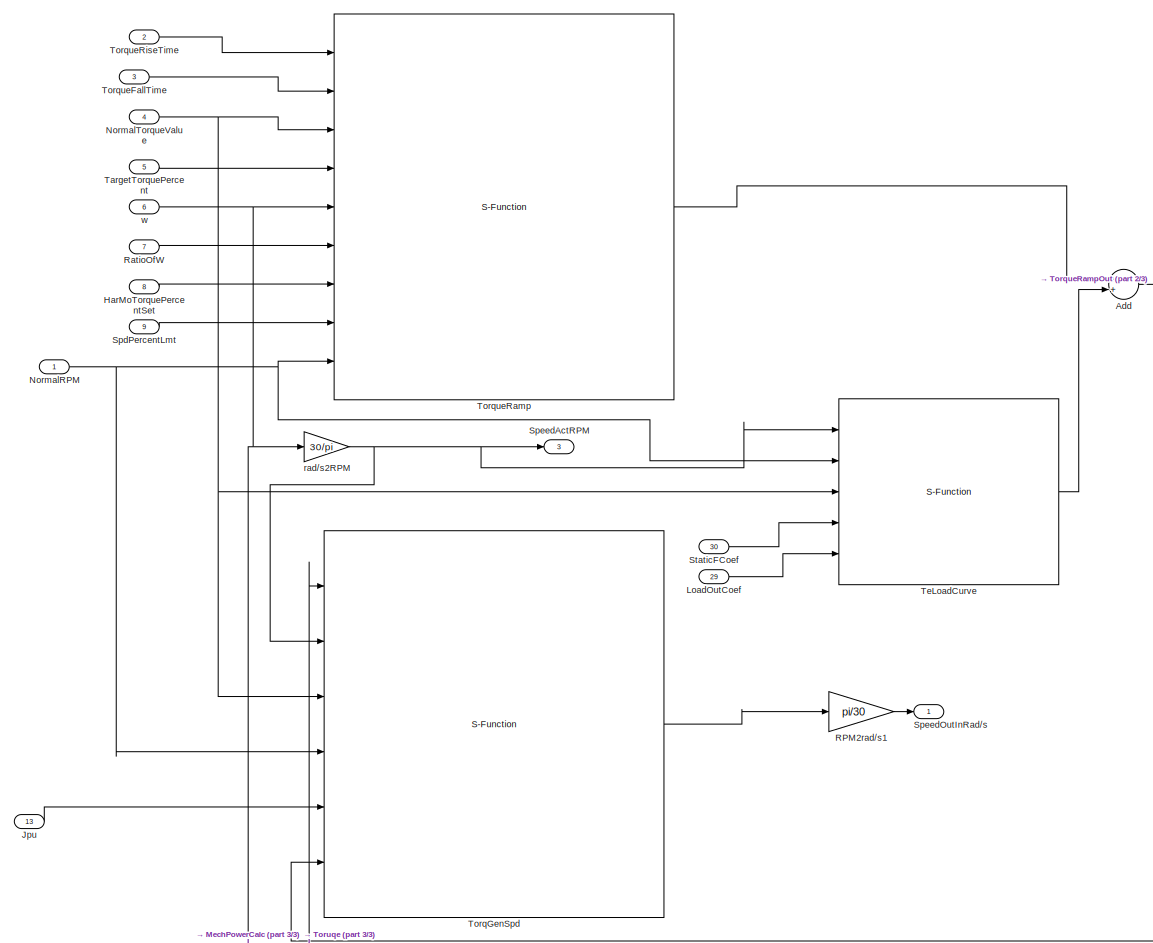
[diagram: root canvas - part 1/3, middle left region]
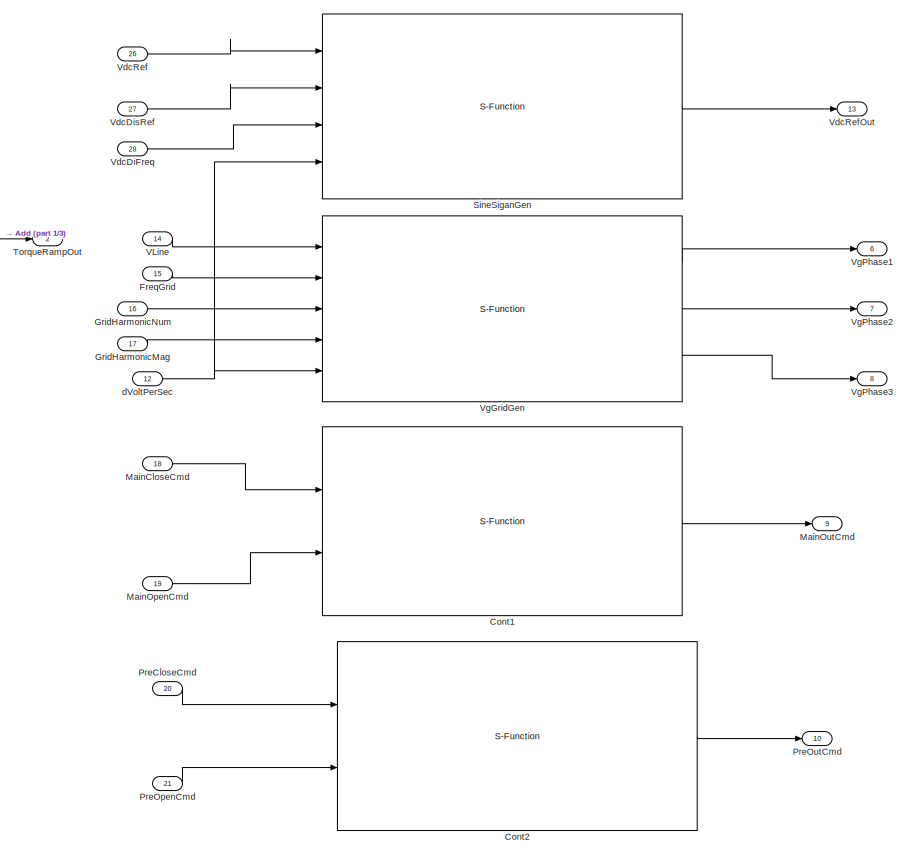
[diagram: root canvas - part 2/3, top right region]
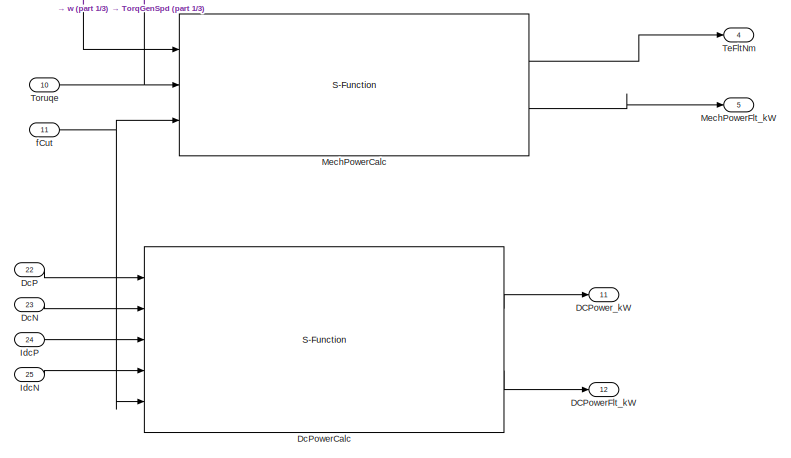
[diagram: root canvas - part 3/3, bottom left region]
MODEL slx_8d3f5c00875e
KIND model
BLOCK [Sum] Add
  InputSameDT = off
  OutDataTypeStr = Inherit: Inherit via internal rule
  Ports = [2, 1]
  SaturateOnIntegerOverflow = off
BLOCK [S-Function] Cont1
  CopyFcn = set_param(gcbh,'LinkStatus','none')
  EnableBusSupport = off
  FunctionName = Contator
  InitFcn = try, set_param(gcb,'FunctionName','Contator'), end
  MaskCapabilities = slmaskedcaps(gcbh)
  MaskDescription = Simulink:masks:SFunctionBuilder_MD
  MaskDisplay = plot(val(:,1),val(:,2)),disp(sys), port_label('input',1,'CloseCmd'), port_label('input',2,'OpenCmd'), port_label('output',1,'ConCmd')
  MaskIconFrame = on
  MaskIconOpaque = on
  MaskIconRotate = none
  MaskIconUnits = normalized
  MaskInitialization = val = [[.9  0.75 0.75 1 1 .9 .9 1]',[1 1 0.75 0.75 .9 .9 1 .9]'];try , sys = get_param(gcb,'SfunBuilderFcnName');if isempty(sys), sys = get_param(gcb,'FunctionName'); end,catch, sys = get_param(gcb,'FunctionName'); end  <repeated x9 — deduplicated; at blocks: Cont1, Cont2, DcPowerCalc, MechPowerCalc, SineSiganGen, TeLoadCurve, TorqGenSpd, TorqueRamp, VgGridGen>
  MaskPortRotate = default
  MaskType = S-Function Builder
  OpenFcn = sfunctionwizard(gcbh)
  Ports = [2, 1]
  PreSaveFcn = try, set_param(gcb,'FunctionName','Contator'), end
  SFunctionDeploymentMode = off
  SFunctionModules = Contator_wrapper
BLOCK [S-Function] Cont2
  CopyFcn = set_param(gcbh,'LinkStatus','none')
  EnableBusSupport = off
  FunctionName = Contator
  InitFcn = try, set_param(gcb,'FunctionName','Contator'), end
  MaskCapabilities = slmaskedcaps(gcbh)
  MaskDescription = Simulink:masks:SFunctionBuilder_MD
  MaskDisplay = plot(val(:,1),val(:,2)),disp(sys), port_label('input',1,'CloseCmd'), port_label('input',2,'OpenCmd'), port_label('output',1,'ConCmd')
  MaskIconFrame = on
  MaskIconOpaque = on
  MaskIconRotate = none
  MaskIconUnits = normalized
  MaskPortRotate = default
  MaskType = S-Function Builder
  OpenFcn = sfunctionwizard(gcbh)
  Ports = [2, 1]
  PreSaveFcn = try, set_param(gcb,'FunctionName','Contator'), end
  SFunctionDeploymentMode = off
  SFunctionModules = Contator_wrapper
BLOCK [Outport] DCPowerFlt_kW
  IconDisplay = Port number
  Port = 12
BLOCK [Outport] DCPower_kW
  IconDisplay = Port number
  Port = 11
BLOCK [Inport] DcN
  IconDisplay = Port number
  Port = 23
BLOCK [Inport] DcP
  IconDisplay = Port number
  Port = 22
BLOCK [S-Function] DcPowerCalc
  CopyFcn = set_param(gcbh,'LinkStatus','none')
  EnableBusSupport = off
  FunctionName = DCPowerCalc
  InitFcn = try, set_param(gcb,'FunctionName','DCPowerCalc'), end
  MaskCapabilities = slmaskedcaps(gcbh)
  MaskDescription = Simulink:masks:SFunctionBuilder_MD
  MaskDisplay = plot(val(:,1),val(:,2)),disp(sys), port_label('input',1,'VdcP'), port_label('input',2,'VdcN'), port_label('input',3,'IdcP'), port_label('input',4,'IdcN'), port_label('input',5,'fCut'), port_label('output',1,'DCPower_kW'), port_label('output',2,'DCPowerFlt_kW')
  MaskIconFrame = on
  MaskIconOpaque = on
  MaskIconRotate = none
  MaskIconUnits = normalized
  MaskPortRotate = default
  MaskType = S-Function Builder
  OpenFcn = sfunctionwizard(gcbh)
  Ports = [5, 2]
  PreSaveFcn = try, set_param(gcb,'FunctionName','DCPowerCalc'), end
  SFunctionDeploymentMode = off
  SFunctionModules = DCPowerCalc_wrapper
BLOCK [Inport] FreqGrid
  IconDisplay = Port number
  Port = 15
BLOCK [Inport] GridHarmonicMag
  IconDisplay = Port number
  Port = 17
BLOCK [Inport] GridHarmonicNum
  IconDisplay = Port number
  Port = 16
BLOCK [Inport] HarMoTorquePercentSet
  IconDisplay = Port number
  Port = 8
BLOCK [Inport] IdcN
  IconDisplay = Port number
  Port = 25
BLOCK [Inport] IdcP
  IconDisplay = Port number
  Port = 24
BLOCK [Inport] Jpu
  IconDisplay = Port number
  Port = 13
BLOCK [Inport] LoadOutCoef
  IconDisplay = Port number
  Port = 29
BLOCK [Inport] MainCloseCmd
  IconDisplay = Port number
  Port = 18
BLOCK [Inport] MainOpenCmd
  IconDisplay = Port number
  Port = 19
BLOCK [Outport] MainOutCmd
  IconDisplay = Port number
  Port = 9
BLOCK [S-Function] MechPowerCalc
  CopyFcn = set_param(gcbh,'LinkStatus','none')
  EnableBusSupport = off
  FunctionName = MechPowerCalc
  InitFcn = try, set_param(gcb,'FunctionName','MechPowerCalc'), end
  MaskCapabilities = slmaskedcaps(gcbh)
  MaskDescription = Simulink:masks:SFunctionBuilder_MD
  MaskDisplay = plot(val(:,1),val(:,2)),disp(sys), port_label('input',1,'Wm'), port_label('input',2,'Torque'), port_label('input',3,'fCut'), port_label('output',1,'MechPower_kW'), port_label('output',2,'MechPowerFlt_kW')
  MaskIconFrame = on
  MaskIconOpaque = on
  MaskIconRotate = none
  MaskIconUnits = normalized
  MaskPortRotate = default
  MaskType = S-Function Builder
  OpenFcn = sfunctionwizard(gcbh)
  Ports = [3, 2]
  PreSaveFcn = try, set_param(gcb,'FunctionName','MechPowerCalc'), end
  SFunctionDeploymentMode = off
  SFunctionModules = MechPowerCalc_wrapper
BLOCK [Outport] MechPowerFlt_kW
  IconDisplay = Port number
  Port = 5
BLOCK [Inport] NormalRPM
  IconDisplay = Port number
BLOCK [Inport] NormalTorqueValue
  IconDisplay = Port number
  Port = 4
BLOCK [Inport] PreCloseCmd
  IconDisplay = Port number
  Port = 20
BLOCK [Inport] PreOpenCmd
  IconDisplay = Port number
  Port = 21
BLOCK [Outport] PreOutCmd
  IconDisplay = Port number
  Port = 10
BLOCK [Gain] RPM2rad//s1
  Gain = pi/30
  OutDataTypeStr = Inherit: Inherit via internal rule
  ParamDataTypeStr = Inherit: Inherit via internal rule
  SaturateOnIntegerOverflow = off
BLOCK [Inport] RatioOfW
  IconDisplay = Port number
  Port = 7
BLOCK [S-Function] SineSiganGen
  CopyFcn = set_param(gcbh,'LinkStatus','none')
  EnableBusSupport = off
  FunctionName = SineSignalGen
  InitFcn = try, set_param(gcb,'FunctionName','SineSignalGen'), end
  MaskCapabilities = slmaskedcaps(gcbh)
  MaskDescription = Simulink:masks:SFunctionBuilder_MD
  MaskDisplay = plot(val(:,1),val(:,2)),disp(sys), port_label('input',1,'DCMag'), port_label('input',2,'ACMag'), port_label('input',3,'Freq'), port_label('input',4,'dVoltPerSec'), port_label('output',1,'SineOut')
  MaskIconFrame = on
  MaskIconOpaque = on
  MaskIconRotate = none
  MaskIconUnits = normalized
  MaskPortRotate = default
  MaskType = S-Function Builder
  OpenFcn = sfunctionwizard(gcbh)
  Ports = [4, 1]
  PreSaveFcn = try, set_param(gcb,'FunctionName','SineSignalGen'), end
  SFunctionDeploymentMode = off
  SFunctionModules = SineSignalGen_wrapper
BLOCK [Inport] SpdPercentLmt
  IconDisplay = Port number
  Port = 9
BLOCK [Outport] SpeedActRPM
  IconDisplay = Port number
  Port = 3
BLOCK [Outport] SpeedOutInRad//s
  IconDisplay = Port number
BLOCK [Inport] StaticFCoef
  IconDisplay = Port number
  Port = 30
BLOCK [Inport] TargetTorquePercent
  IconDisplay = Port number
  Port = 5
BLOCK [Outport] TeFltNm
  IconDisplay = Port number
  Port = 4
BLOCK [S-Function] TeLoadCurve
  CopyFcn = set_param(gcbh,'LinkStatus','none')
  EnableBusSupport = off
  FunctionName = TeCurveSignalGen
  InitFcn = try, set_param(gcb,'FunctionName','TeCurveSignalGen'), end
  MaskCapabilities = slmaskedcaps(gcbh)
  MaskDescription = Simulink:masks:SFunctionBuilder_MD
  MaskDisplay = plot(val(:,1),val(:,2)),disp(sys), port_label('input',1,'nrpm'), port_label('input',2,'NormRpm'), port_label('input',3,'TeNorm'), port_label('input',4,'StaticFCoef'), port_label('input',5,'KpLoadCurve'), port_label('output',1,'TLCurveOut')
  MaskIconFrame = on
  MaskIconOpaque = on
  MaskIconRotate = none
  MaskIconUnits = normalized
  MaskPortRotate = default
  MaskType = S-Function Builder
  OpenFcn = sfunctionwizard(gcbh)
  Ports = [5, 1]
  PreSaveFcn = try, set_param(gcb,'FunctionName','TeCurveSignalGen'), end
  SFunctionDeploymentMode = off
  SFunctionModules = TeCurveSignalGen_wrapper
BLOCK [S-Function] TorqGenSpd
  CopyFcn = set_param(gcbh,'LinkStatus','none')
  EnableBusSupport = off
  FunctionName = TorqueGenSpd
  InitFcn = try, set_param(gcb,'FunctionName','TorqueGenSpd'), end
  MaskCapabilities = slmaskedcaps(gcbh)
  MaskDescription = Simulink:masks:SFunctionBuilder_MD
  MaskDisplay = plot(val(:,1),val(:,2)),disp(sys), port_label('input',1,'TorqMotor'), port_label('input',2,'SpdAct'), port_label('input',3,'TorqBase'), port_label('input',4,'SpdBase'), port_label('input',5,'Jpu'), port_label('input',6,'TorqLoad'), port_label('output',1,'SpdSetOut')
  MaskIconFrame = on
  MaskIconOpaque = on
  MaskIconRotate = none
  MaskIconUnits = normalized
  MaskPortRotate = default
  MaskType = S-Function Builder
  OpenFcn = sfunctionwizard(gcbh)
  Ports = [6, 1]
  PreSaveFcn = try, set_param(gcb,'FunctionName','TorqueGenSpd'), end
  SFunctionDeploymentMode = off
  SFunctionModules = TorqueGenSpd_wrapper
BLOCK [Inport] TorqueFallTime
  IconDisplay = Port number
  Port = 3
BLOCK [S-Function] TorqueRamp
  CopyFcn = set_param(gcbh,'LinkStatus','none')
  EnableBusSupport = off
  FunctionName = TorqueRefGen
  InitFcn = try, set_param(gcb,'FunctionName','TorqueRefGen'), end
  MaskCapabilities = slmaskedcaps(gcbh)
  MaskDescription = Simulink:masks:SFunctionBuilder_MD
  MaskDisplay = plot(val(:,1),val(:,2)),disp(sys), port_label('input',1,'RiseTime'), port_label('input',2,'FallTime'), port_label('input',3,'NormalValue'), port_label('input',4,'DestValuePercent'), port_label('input',5,'w'), port_label('input',6,'RatioOfW'), port_label('input',7,'HarmoTorquePercent'), port_label('input',8,'SpdPercentLmt'), port_label('input',9,'RPMNorm'), port_label('output',1,'RampOut')
  MaskIconFrame = on
  MaskIconOpaque = on
  MaskIconRotate = none
  MaskIconUnits = normalized
  MaskPortRotate = default
  MaskType = S-Function Builder
  OpenFcn = sfunctionwizard(gcbh)
  Ports = [9, 1]
  PreSaveFcn = try, set_param(gcb,'FunctionName','TorqueRefGen'), end
  SFunctionDeploymentMode = off
  SFunctionModules = TorqueRefGen_wrapper
BLOCK [Outport] TorqueRampOut
  IconDisplay = Port number
  Port = 2
BLOCK [Inport] TorqueRiseTime
  IconDisplay = Port number
  Port = 2
BLOCK [Inport] Toruqe
  IconDisplay = Port number
  Port = 10
BLOCK [Inport] VLine
  IconDisplay = Port number
  Port = 14
BLOCK [Inport] VdcDiFreq
  IconDisplay = Port number
  Port = 28
BLOCK [Inport] VdcDisRef
  IconDisplay = Port number
  Port = 27
BLOCK [Inport] VdcRef
  IconDisplay = Port number
  Port = 26
BLOCK [Outport] VdcRefOut
  IconDisplay = Port number
  Port = 13
BLOCK [S-Function] VgGridGen
  CopyFcn = set_param(gcbh,'LinkStatus','none')
  EnableBusSupport = off
  FunctionName = VgGridGen
  InitFcn = try, set_param(gcb,'FunctionName','VgGridGen'), end
  MaskCapabilities = slmaskedcaps(gcbh)
  MaskDescription = Simulink:masks:SFunctionBuilder_MD
  MaskDisplay = plot(val(:,1),val(:,2)),disp(sys), port_label('input',1,'ACLine'), port_label('input',2,'Freq'), port_label('input',3,'HarmonicNum'), port_label('input',4,'HarmonicMag'), port_label('input',5,'dVoltPerSec'), port_label('output',1,'VgPhaseA'), port_label('output',2,'VgPhaseB'), port_label('output',3,'VgPhaseC')
  MaskIconFrame = on
  MaskIconOpaque = on
  MaskIconRotate = none
  MaskIconUnits = normalized
  MaskPortRotate = default
  MaskType = S-Function Builder
  OpenFcn = sfunctionwizard(gcbh)
  Ports = [5, 3]
  PreSaveFcn = try, set_param(gcb,'FunctionName','VgGridGen'), end
  SFunctionDeploymentMode = off
  SFunctionModules = VgGridGen_wrapper
BLOCK [Outport] VgPhase1
  IconDisplay = Port number
  Port = 6
BLOCK [Outport] VgPhase2
  IconDisplay = Port number
  Port = 7
BLOCK [Outport] VgPhase3
  IconDisplay = Port number
  Port = 8
BLOCK [Inport] dVoltPerSec
  IconDisplay = Port number
  Port = 12
BLOCK [Inport] fCut
  IconDisplay = Port number
  Port = 11
BLOCK [Gain] rad//s2RPM
  Gain = 30/pi
  OutDataTypeStr = Inherit: Inherit via internal rule
  ParamDataTypeStr = Inherit: Inherit via internal rule
  SaturateOnIntegerOverflow = off
BLOCK [Inport] w
  IconDisplay = Port number
  Port = 6
NET Add:1 -> TorqGenSpd:6, TorqueRampOut:1
LINE Cont1:1 -> MainOutCmd:1
LINE Cont2:1 -> PreOutCmd:1
LINE DcN:1 -> DcPowerCalc:2
LINE DcP:1 -> DcPowerCalc:1
LINE DcPowerCalc:1 -> DCPower_kW:1
LINE DcPowerCalc:2 -> DCPowerFlt_kW:1
LINE FreqGrid:1 -> VgGridGen:2
LINE GridHarmonicMag:1 -> VgGridGen:4
LINE GridHarmonicNum:1 -> VgGridGen:3
LINE HarMoTorquePercentSet:1 -> TorqueRamp:7
LINE IdcN:1 -> DcPowerCalc:4
LINE IdcP:1 -> DcPowerCalc:3
LINE Jpu:1 -> TorqGenSpd:5
LINE LoadOutCoef:1 -> TeLoadCurve:5
LINE MainCloseCmd:1 -> Cont1:1
LINE MainOpenCmd:1 -> Cont1:2
LINE MechPowerCalc:1 -> TeFltNm:1
LINE MechPowerCalc:2 -> MechPowerFlt_kW:1
NET NormalRPM:1 -> TeLoadCurve:2, TorqGenSpd:4, TorqueRamp:9
NET NormalTorqueValue:1 -> TeLoadCurve:3, TorqGenSpd:3, TorqueRamp:3
LINE PreCloseCmd:1 -> Cont2:1
LINE PreOpenCmd:1 -> Cont2:2
LINE RPM2rad//s1:1 -> SpeedOutInRad//s:1
LINE RatioOfW:1 -> TorqueRamp:6
LINE SineSiganGen:1 -> VdcRefOut:1
LINE SpdPercentLmt:1 -> TorqueRamp:8
LINE StaticFCoef:1 -> TeLoadCurve:4
LINE TargetTorquePercent:1 -> TorqueRamp:4
LINE TeLoadCurve:1 -> Add:2
LINE TorqGenSpd:1 -> RPM2rad//s1:1
LINE TorqueFallTime:1 -> TorqueRamp:2
LINE TorqueRamp:1 -> Add:1
LINE TorqueRiseTime:1 -> TorqueRamp:1
NET Toruqe:1 -> MechPowerCalc:2, TorqGenSpd:1
LINE VLine:1 -> VgGridGen:1
LINE VdcDiFreq:1 -> SineSiganGen:3
LINE VdcDisRef:1 -> SineSiganGen:2
LINE VdcRef:1 -> SineSiganGen:1
LINE VgGridGen:1 -> VgPhase1:1
LINE VgGridGen:2 -> VgPhase2:1
LINE VgGridGen:3 -> VgPhase3:1
NET dVoltPerSec:1 -> SineSiganGen:4, VgGridGen:5
NET fCut:1 -> DcPowerCalc:5, MechPowerCalc:3
NET rad//s2RPM:1 -> SpeedActRPM:1, TeLoadCurve:1, TorqGenSpd:2
NET w:1 -> MechPowerCalc:1, TorqueRamp:5, rad//s2RPM:1
note: NET lines group one-source signal fan-out (src -> all destinations, sorted); 1:1 wires keep LINE
